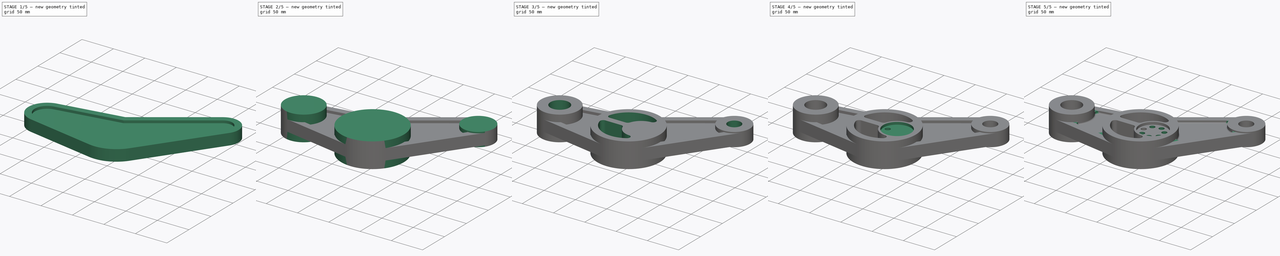
[diagram: build sequence overview — one tinted view per stage of 5, left to right]
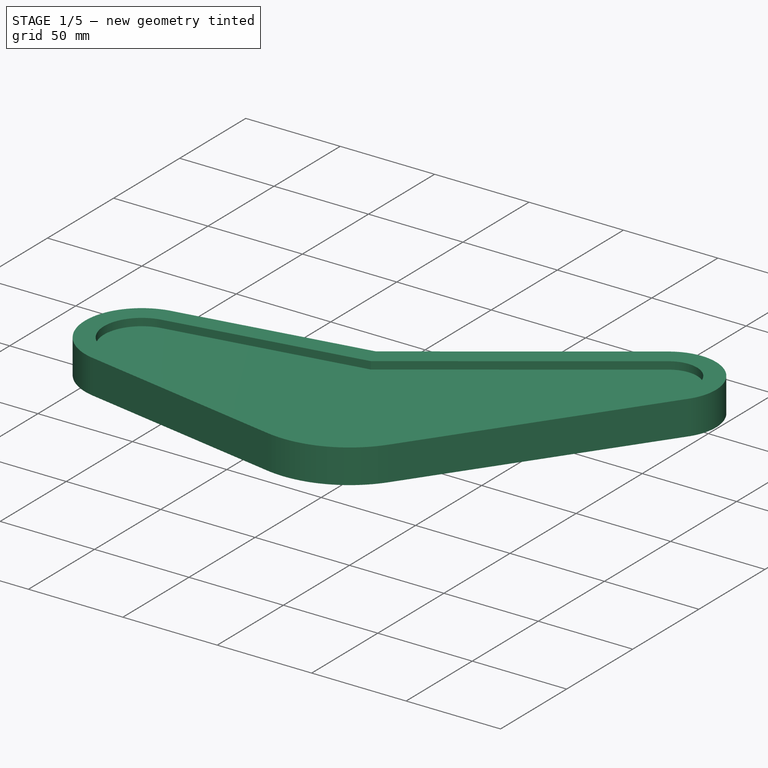
[diagram: stage 1 of 5 — iso view after this stage's code; geometry added in this stage tinted green]
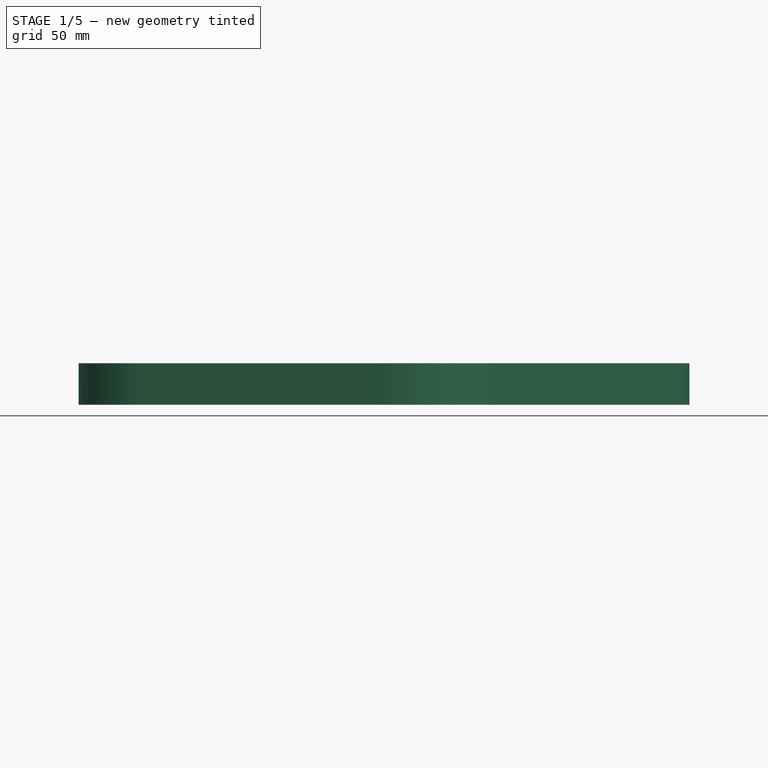
[diagram: stage 1 of 5 — front view after this stage's code; geometry added in this stage tinted green]
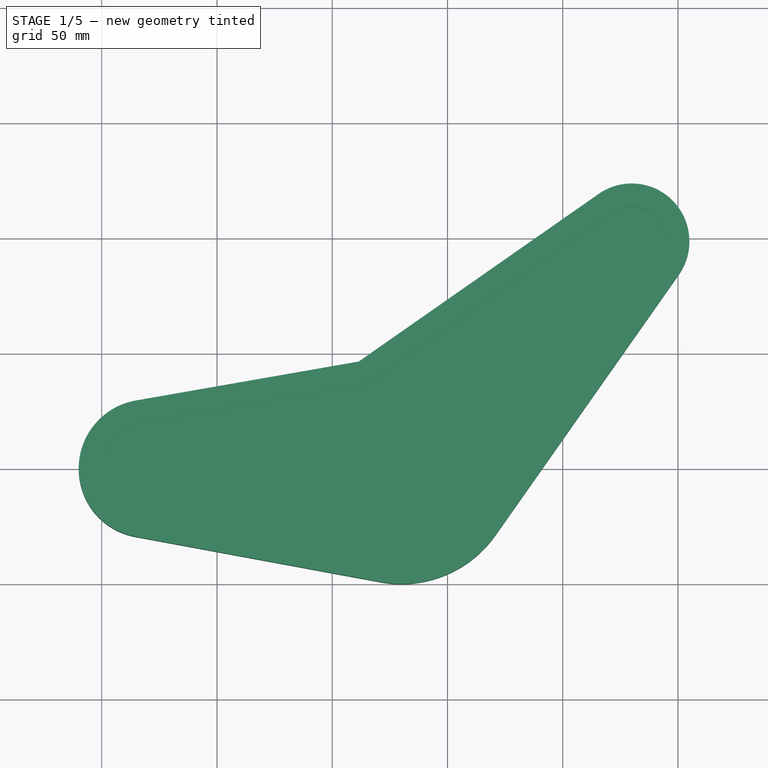
[diagram: stage 1 of 5 — top view after this stage's code; geometry added in this stage tinted green]
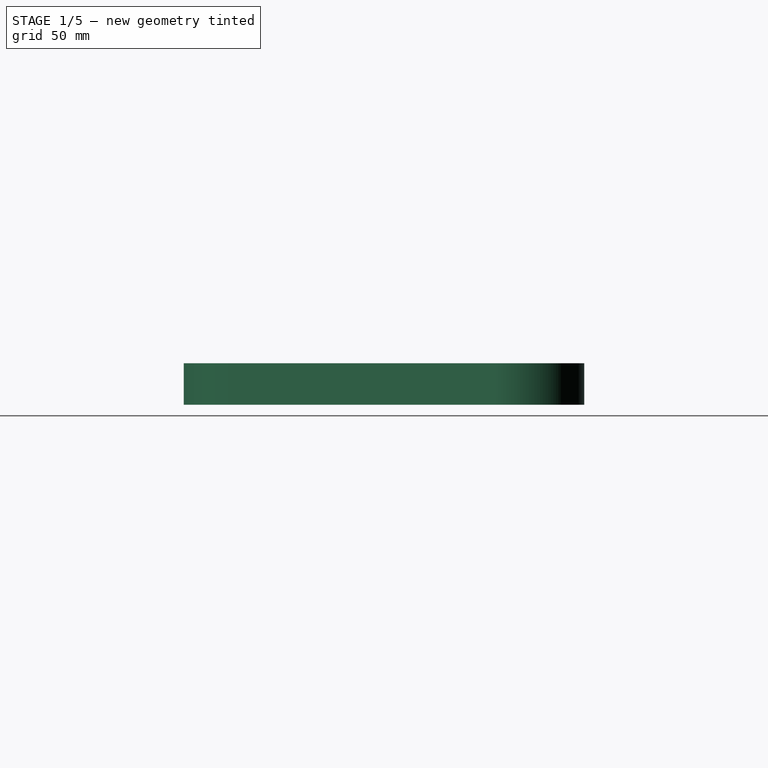
[diagram: stage 1 of 5 — right view after this stage's code; geometry added in this stage tinted green]
FCSTD DOCUMENT  (FreeCAD 0.17R9467 (Git))
Label: Moderate
License: All rights reserved
LicenseURL: http://en.wikipedia.org/wiki/All_rights_reserved
objects: Sketcher::SketchObject×9, PartDesign::Pocket×5, PartDesign::Pad×4, PartDesign::Mirrored×3, PartDesign::Plane×2, PartDesign::Fillet×2, PartDesign::PolarPattern×1, PartDesign::Body×1
note: 36 computed .brp shape members not serialized (recipe doc carries the construction recipe); baked Part::Feature solids carry a one-line shape summary decoded from their .brp

FEATURE [Sketcher::SketchObject] Sketch
  MapMode = 5
  Support = -> [XY_Plane]
  sketch-geometry (11):
    g0: Circle [constr] CenterX=0 CenterY=0 CenterZ=0 NormalX=0 NormalY=0 NormalZ=1 Radius=20
    g1: LineSegment [constr] StartX=0 StartY=0 StartZ=0 EndX=79.9237 EndY=98.6975 EndZ=0
    g2: LineSegment [constr] StartX=0 StartY=0 StartZ=0 EndX=-130 EndY=0 EndZ=0
    g3: ArcOfCircle CenterX=79.9237 CenterY=98.6975 CenterZ=0 NormalX=0 NormalY=0 NormalZ=1 Radius=25 StartAngle=5.67057 EndAngle=8.46384
    g4: ArcOfCircle CenterX=-130 CenterY=0 CenterZ=0 NormalX=0 NormalY=0 NormalZ=1 Radius=30 StartAngle=1.74387 EndAngle=4.52955
    g5: LineSegment StartX=-135.455 StartY=-29.5 StartZ=0 EndX=-29.091 EndY=-49.1666 EndZ=0
    g6: LineSegment StartX=20.9073 StartY=-28.7505 StartZ=0 EndX=100.377 EndY=84.3223 EndZ=0
    g7: LineSegment StartX=65.6049 StartY=119.191 StartZ=0 EndX=-38.5007 EndY=46.4513 EndZ=0
    g8: LineSegment StartX=-135.166 StartY=29.5518 StartZ=0 EndX=-38.5007 EndY=46.4513 EndZ=0
    g9: ArcOfCircle CenterX=-20 CenterY=0 CenterZ=0 NormalX=0 NormalY=0 NormalZ=1 Radius=50 StartAngle=4.52955 EndAngle=5.67057
    g10: LineSegment [constr] StartX=-38.5007 StartY=46.4513 StartZ=0 EndX=-20 EndY=0 EndZ=0
  constraints (32):
    c: Coincident(g0,g-1)
    c: Coincident(g1,g-1)
    c: Coincident(g2,g-1)
    c: Horizontal(g2)
    c: Radius(g0) = 20
    c: Angle(g-1,g1) = 0.890118
    c: Coincident(g3,g1)
    c: Coincident(g4,g2)
    c: Coincident(g5,g4)
    c: Coincident(g8,g4)
    c: Coincident(g7,g8)
    c: Tangent(g5,g4)
    c: Tangent(g8,g4)
    c: Coincident(g3,g7)
    c: Tangent(g3,g7)
    c: Tangent(g6,g3)
    c: Coincident(g3,g6)
    c: Radius(g3) = 25
    c: Radius(g4) = 30
    c: PointOnObject(g9,g0)
    c: Coincident(g9,g6)
    c: Coincident(g9,g5)
    c: PointOnObject(g9,g-1)
    c: Tangent(g5,g9)
    c: Tangent(g9,g6)
    c: DistanceX(g2,g-1) = 130
    c: Distance(g1) = 127
    c: Distance(g7) = 127
    c: Radius(g9) = 50
    c: Coincident(g10,g7)
    c: Coincident(g10,g9)
    c: Distance(g10) = 50
FEATURE [PartDesign::Pad] Pad
  Length = 18
  Length2 = 100
  Midplane = true
  Profile = -> Sketch
  Type = 0
FEATURE [PartDesign::Plane] DatumPlane
  MapMode = 5
  Placement = pos=(0,0,9) rot=(0,0,1;0rad)
  Support = -> [XY_Plane]
  superPlacement = pos=(0,0,9) rot=(0,0,1;0rad)
FEATURE [Sketcher::SketchObject] Sketch001
  ExternalGeometry = -> [Pad]
  MapMode = 5
  Placement = pos=(0,0,9) rot=(0,0,1;0rad)
  Support = -> [DatumPlane]
  sketch-geometry (7):
    g0: ArcOfCircle CenterX=79.9237 CenterY=98.6975 CenterZ=0 NormalX=0 NormalY=0 NormalZ=1 Radius=15 StartAngle=5.67057 EndAngle=8.46384
    g1: ArcOfCircle CenterX=-20 CenterY=0 CenterZ=0 NormalX=0 NormalY=0 NormalZ=1 Radius=40 StartAngle=4.52956 EndAngle=5.67057
    g2: ArcOfCircle CenterX=-130 CenterY=0 CenterZ=0 NormalX=0 NormalY=0 NormalZ=1 Radius=20 StartAngle=1.74387 EndAngle=4.52955
    g3: LineSegment StartX=-133.444 StartY=19.7012 StartZ=0 EndX=-34.5924 EndY=36.9829 EndZ=0
    g4: LineSegment StartX=71.3324 StartY=110.993 StartZ=0 EndX=-34.5924 EndY=36.9829 EndZ=0
    g5: LineSegment StartX=-133.636 StartY=-19.6666 StartZ=0 EndX=-27.2727 EndY=-39.3333 EndZ=0
    g6: LineSegment StartX=12.7258 StartY=-23.0004 StartZ=0 EndX=92.1959 EndY=90.0724 EndZ=0
  constraints (21):
    c: Coincident(g0,g-4)
    c: Coincident(g1,g-3)
    c: Coincident(g2,g-5)
    c: Coincident(g3,g2)
    c: Coincident(g5,g2)
    c: Coincident(g5,g1)
    c: Coincident(g6,g1)
    c: Coincident(g0,g6)
    c: Coincident(g0,g4)
    c: Coincident(g3,g4)
    c: Radius(g2) = 20
    c: Radius(g0) = 15
    c: Radius(g1) = 40
    c: Tangent(g0,g4)
    c: Tangent(g3,g2)
    c: Tangent(g5,g2)
    c: Tangent(g6,g1)
    c: Tangent(g5,g1)
    c: Tangent(g0,g6)
    c: Parallel(g4,g-6)
    c: Parallel(g3,g-7)
FEATURE [PartDesign::Pocket] Pocket
  BaseFeature = -> Pad
  Length = 4
  Profile = -> Sketch001
  Type = 0
FEATURE [PartDesign::Mirrored] Mirrored
  BaseFeature = -> Pocket
  MirrorPlane = -> XY_Plane
  Originals = -> [Pocket]
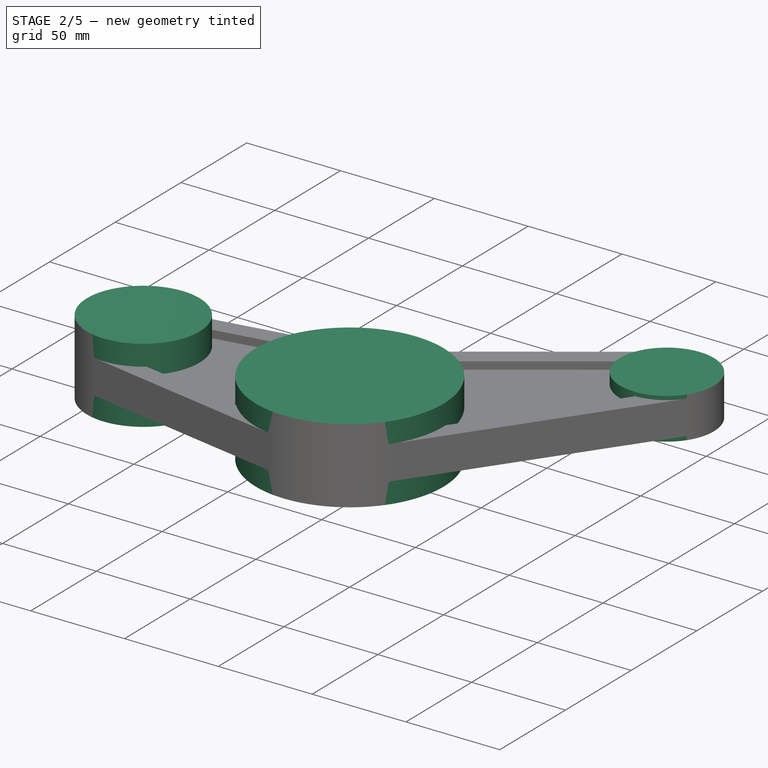
[diagram: stage 2 of 5 — iso view after this stage's code; geometry added in this stage tinted green]
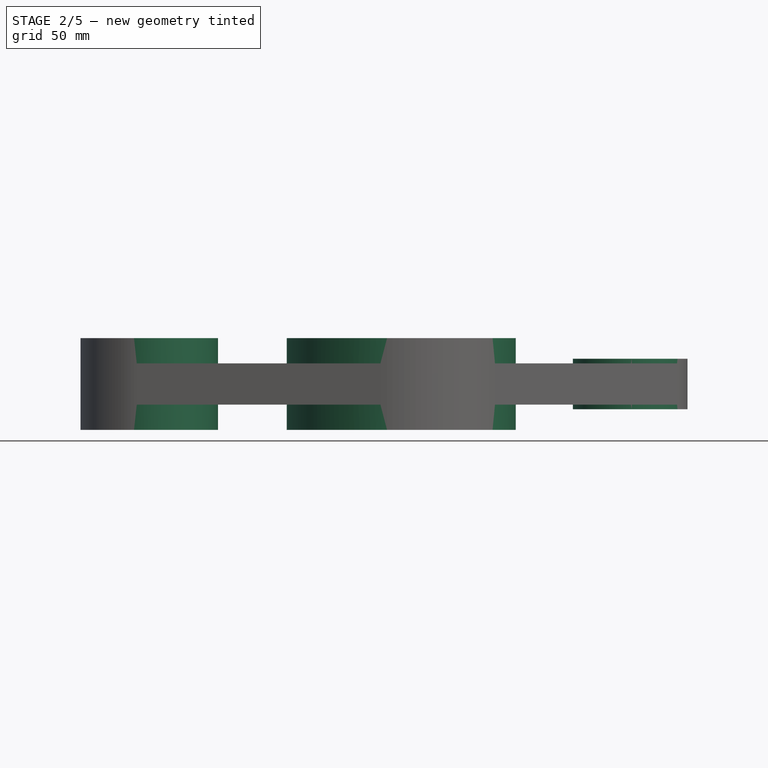
[diagram: stage 2 of 5 — front view after this stage's code; geometry added in this stage tinted green]
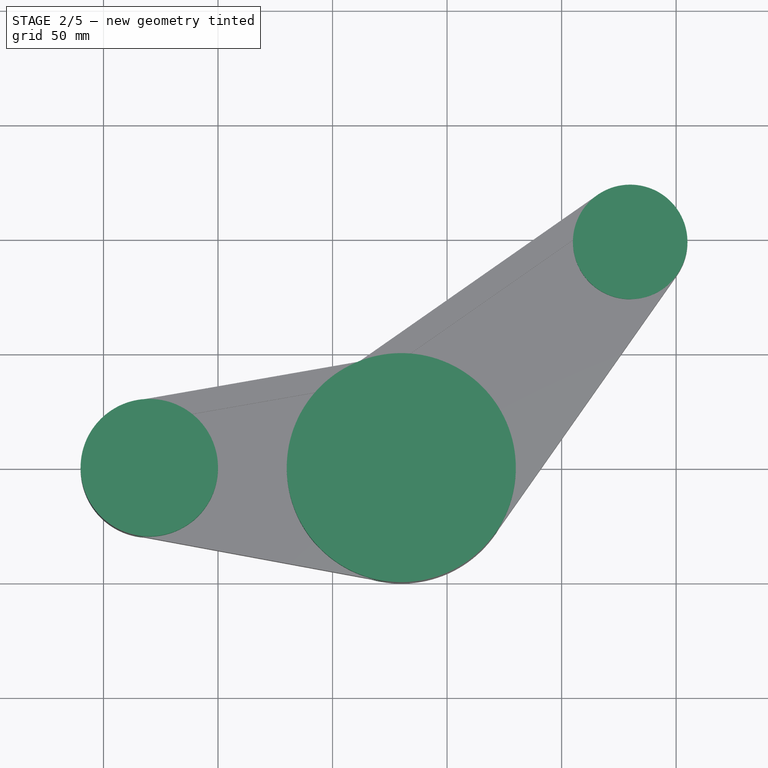
[diagram: stage 2 of 5 — top view after this stage's code; geometry added in this stage tinted green]
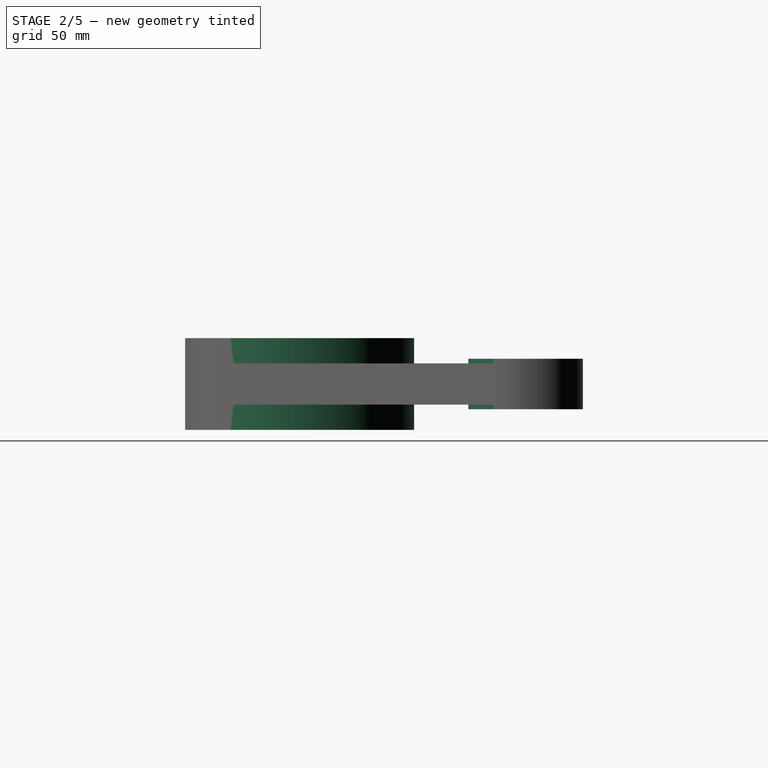
[diagram: stage 2 of 5 — right view after this stage's code; geometry added in this stage tinted green]
FEATURE [Sketcher::SketchObject] Sketch002
  MapMode = 5
  Support = -> [XY_Plane]
  sketch-geometry (1):
    g0: Circle CenterX=-20 CenterY=0 CenterZ=0 NormalX=0 NormalY=0 NormalZ=1 Radius=50
  constraints (3):
    c: PointOnObject(g0,g-1)
    c: Radius(g0) = 50
    c: DistanceX(g0,g-1) = 20
FEATURE [PartDesign::Pad] Pad001
  BaseFeature = -> Mirrored
  Length = 40
  Length2 = 100
  Midplane = true
  Profile = -> Sketch002
  Type = 0
FEATURE [Sketcher::SketchObject] Sketch003
  ExternalGeometry = -> [Pad001]
  MapMode = 5
  Support = -> [XY_Plane]
  sketch-geometry (1):
    g0: Circle CenterX=79.9237 CenterY=98.6975 CenterZ=0 NormalX=0 NormalY=0 NormalZ=1 Radius=25
  constraints (2):
    c: Coincident(g0,g-3)
    c: Radius(g0) = 25
FEATURE [PartDesign::Pad] Pad002
  BaseFeature = -> Pad001
  Length = 22
  Length2 = 100
  Midplane = true
  Profile = -> Sketch003
  Type = 0
FEATURE [Sketcher::SketchObject] Sketch004
  ExternalGeometry = -> [Pad002]
  MapMode = 5
  Support = -> [XY_Plane]
  sketch-geometry (1):
    g0: Circle CenterX=-130 CenterY=0 CenterZ=0 NormalX=0 NormalY=0 NormalZ=1 Radius=30
  constraints (2):
    c: Coincident(g0,g-3)
    c: Radius(g0) = 30
FEATURE [PartDesign::Pad] Pad003
  BaseFeature = -> Pad002
  Length = 40
  Length2 = 100
  Midplane = true
  Profile = -> Sketch004
  Type = 0
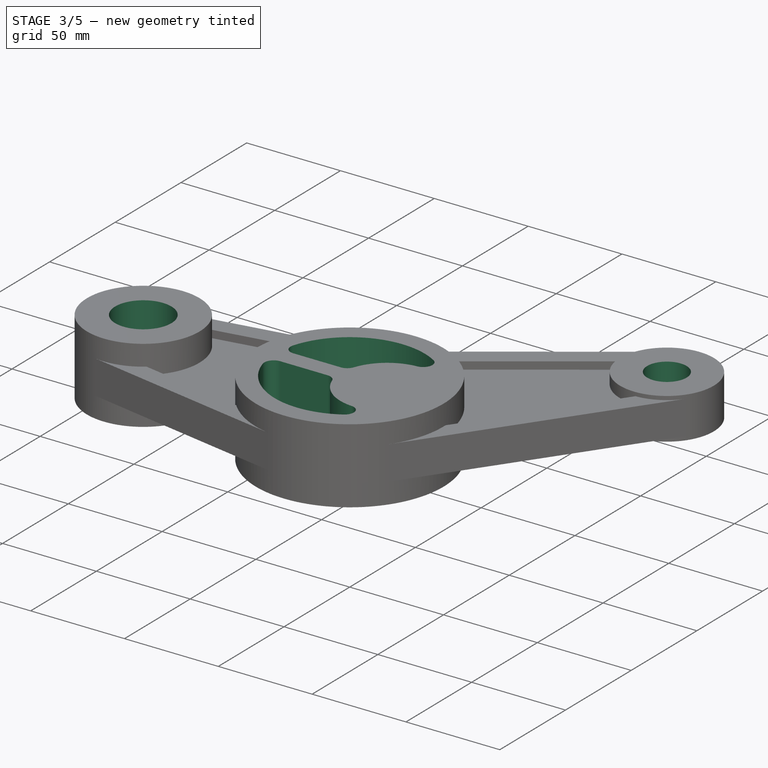
[diagram: stage 3 of 5 — iso view after this stage's code; geometry added in this stage tinted green]
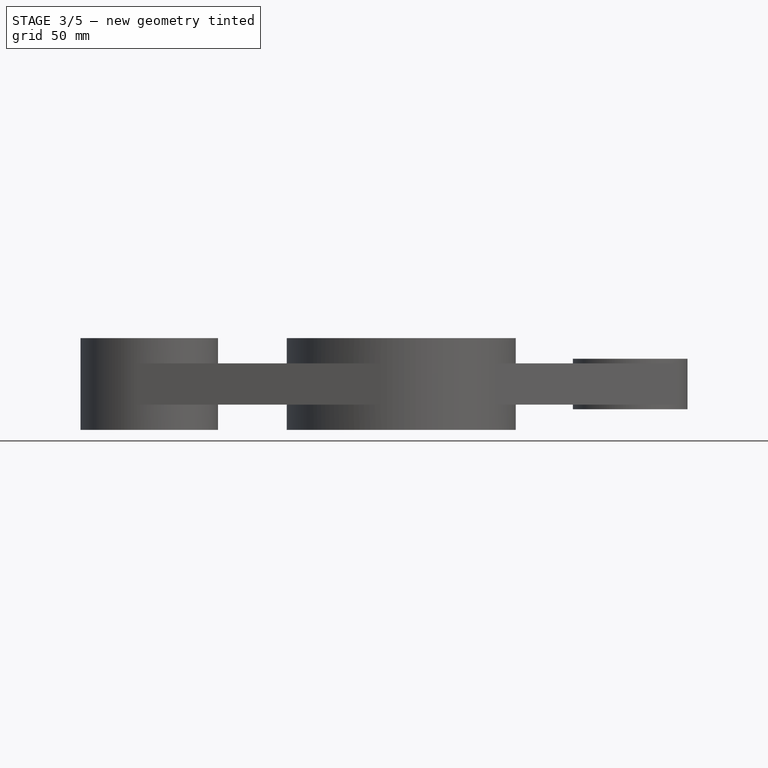
[diagram: stage 3 of 5 — front view after this stage's code; geometry added in this stage tinted green]
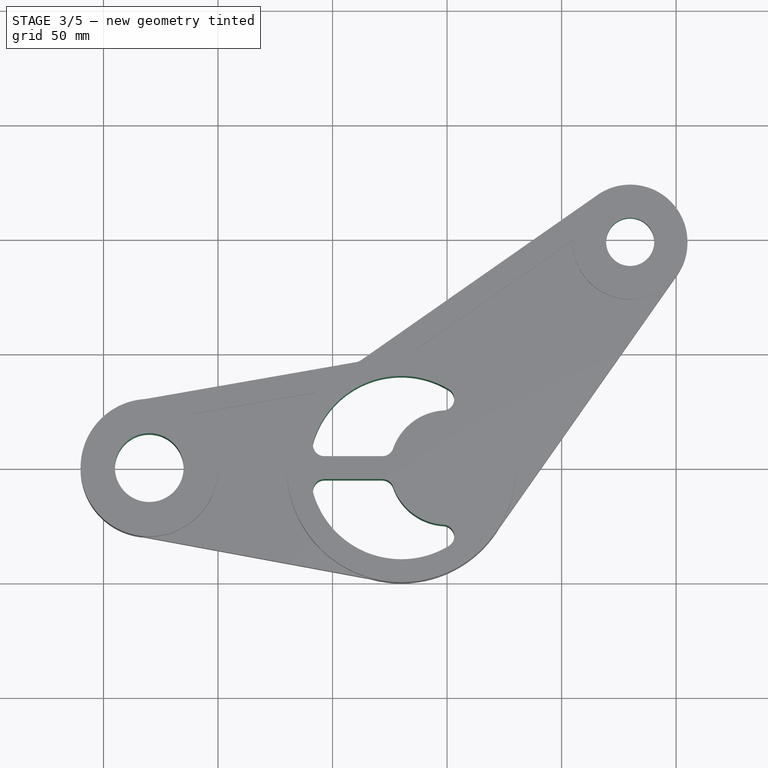
[diagram: stage 3 of 5 — top view after this stage's code; geometry added in this stage tinted green]
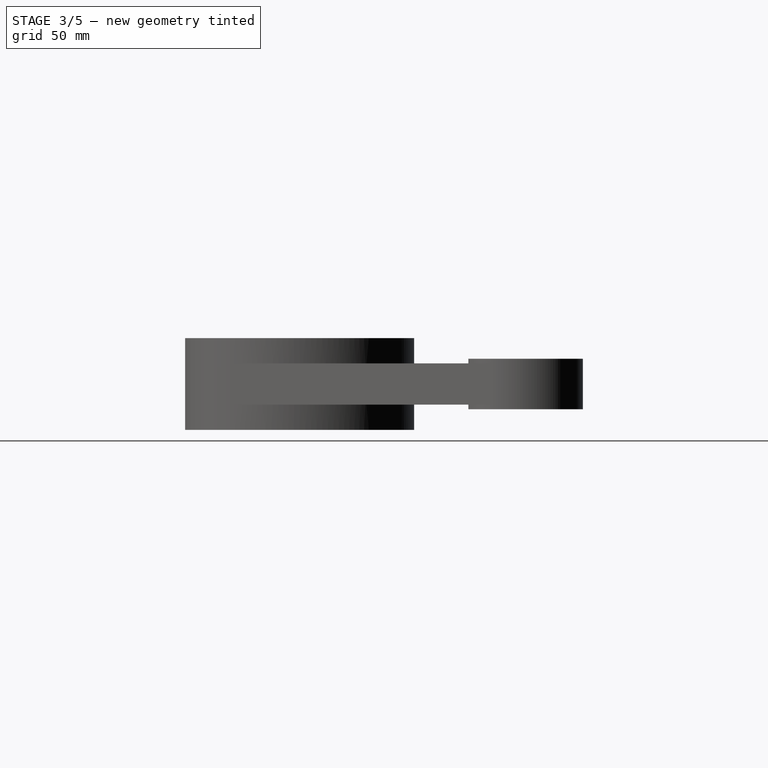
[diagram: stage 3 of 5 — right view after this stage's code; geometry added in this stage tinted green]
FEATURE [Sketcher::SketchObject] Sketch005
  ExternalGeometry = -> [Pad003]
  MapMode = 5
  Support = -> [XY_Plane]
  sketch-geometry (2):
    g0: Circle CenterX=-130 CenterY=0 CenterZ=0 NormalX=0 NormalY=0 NormalZ=1 Radius=15
    g1: Circle CenterX=79.9237 CenterY=98.6975 CenterZ=0 NormalX=0 NormalY=0 NormalZ=1 Radius=10.5
  constraints (4):
    c: Coincident(g0,g-3)
    c: Coincident(g1,g-4)
    c: Radius(g1) = 10.5
    c: Radius(g0) = 15
FEATURE [PartDesign::Pocket] Pocket001
  BaseFeature = -> Pad003
  Length = 5
  Midplane = true
  Profile = -> Sketch005
  Type = 1
FEATURE [Sketcher::SketchObject] Sketch006
  MapMode = 5
  Support = -> [XY_Plane]
  sketch-geometry (8):
    g0: Circle [constr] CenterX=-20 CenterY=0 CenterZ=0 NormalX=0 NormalY=0 NormalZ=1 Radius=50
    g1: Circle [constr] CenterX=0 CenterY=0 CenterZ=0 NormalX=0 NormalY=0 NormalZ=1 Radius=22
    g2: ArcOfCircle CenterX=0 CenterY=0 CenterZ=0 NormalX=0 NormalY=0 NormalZ=1 Radius=25 StartAngle=1.63334 EndAngle=2.80176
    g3: ArcOfCircle CenterX=-20 CenterY=0 CenterZ=0 NormalX=0 NormalY=0 NormalZ=1 Radius=40 StartAngle=1.02645 EndAngle=2.85184
    g4: ArcOfCircle CenterX=-53.541 CenterY=10 CenterZ=0 NormalX=0 NormalY=0 NormalZ=1 Radius=5 StartAngle=2.85184 EndAngle=4.71239
    g5: ArcOfCircle CenterX=-28.2843 CenterY=10 CenterZ=0 NormalX=0 NormalY=0 NormalZ=1 Radius=5 StartAngle=4.71239 EndAngle=5.94335
    g6: ArcOfCircle CenterX=-1.875 CenterY=29.9413 CenterZ=0 NormalX=0 NormalY=0 NormalZ=1 Radius=5 StartAngle=4.77493 EndAngle=7.30963
    g7: LineSegment StartX=-53.541 StartY=5 StartZ=0 EndX=-28.2843 EndY=5 EndZ=0
  constraints (26):
    c: PointOnObject(g0,g-1)
    c: Coincident(g1,g-1)
    c: DistanceX(g0,g-1) = 20
    c: Radius(g0) = 50
    c: Radius(g1) = 22
    c: Coincident(g2,g-1)
    c: Coincident(g3,g0)
    c: Coincident(g4,g3)
    c: Coincident(g5,g2)
    c: Coincident(g6,g3)
    c: Tangent(g6,g3)
    c: Tangent(g4,g3)
    c: Tangent(g5,g2)
    c: Tangent(g6,g2)
    c: Coincident(g2,g6)
    c: Coincident(g7,g4)
    c: Coincident(g7,g5)
    c: Horizontal(g7)
    c: Tangent(g5,g7)
    c: Tangent(g4,g7)
    c: Radius(g3) = 40
    c: Radius(g2) = 25
    c: DistanceY(g4) = 5
    c: Equal(g5,g4)
    c: Radius(g4) = 5
    c: Equal(g5,g6)
FEATURE [PartDesign::Pocket] Pocket002
  BaseFeature = -> Pocket001
  Length = 5
  Midplane = true
  Profile = -> Sketch006
  Type = 1
FEATURE [PartDesign::Mirrored] Mirrored001
  BaseFeature = -> Pocket002
  MirrorPlane = -> Sketch006 [H_Axis]
  Originals = -> [Pocket002]
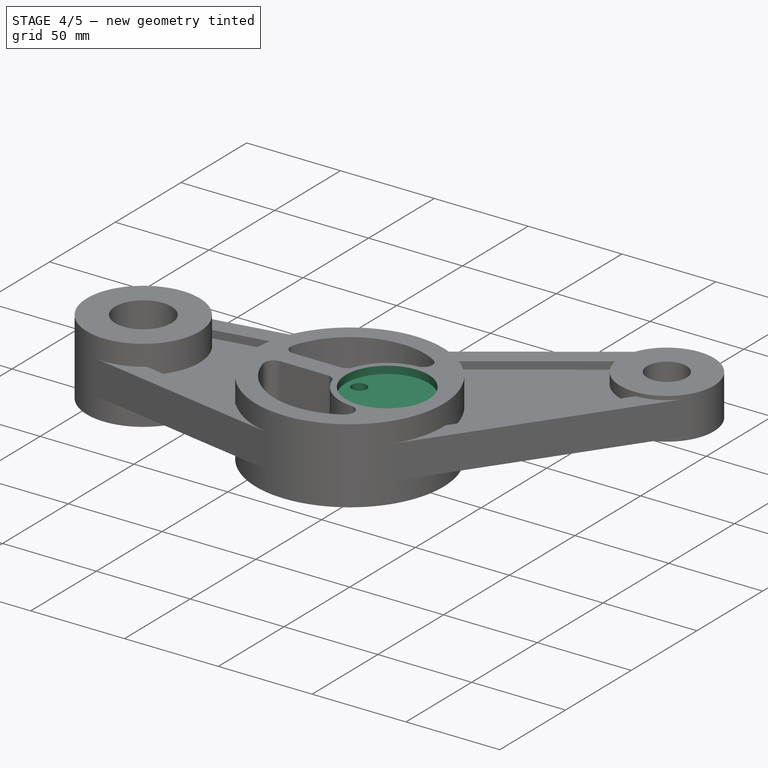
[diagram: stage 4 of 5 — iso view after this stage's code; geometry added in this stage tinted green]
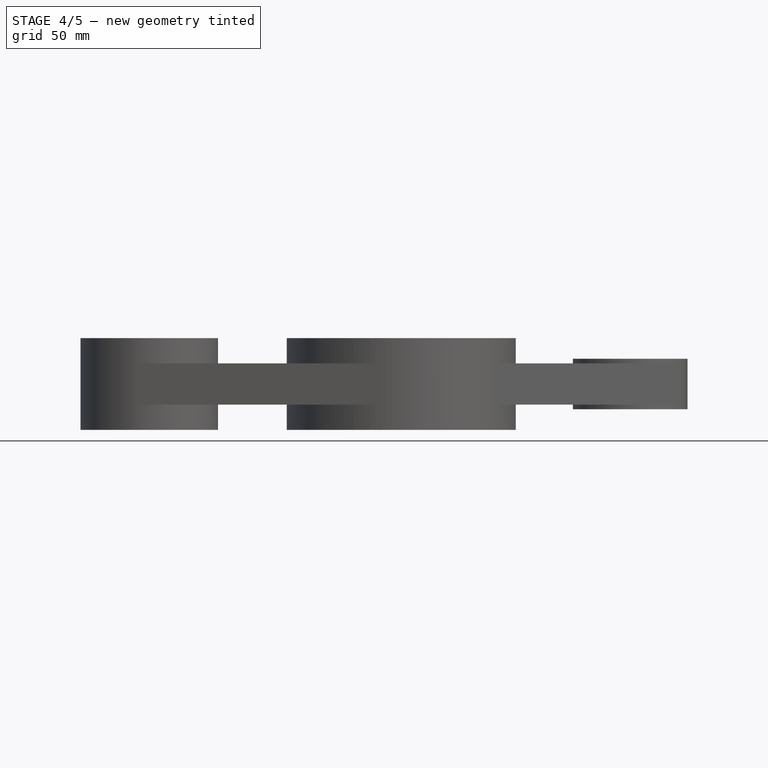
[diagram: stage 4 of 5 — front view after this stage's code; geometry added in this stage tinted green]
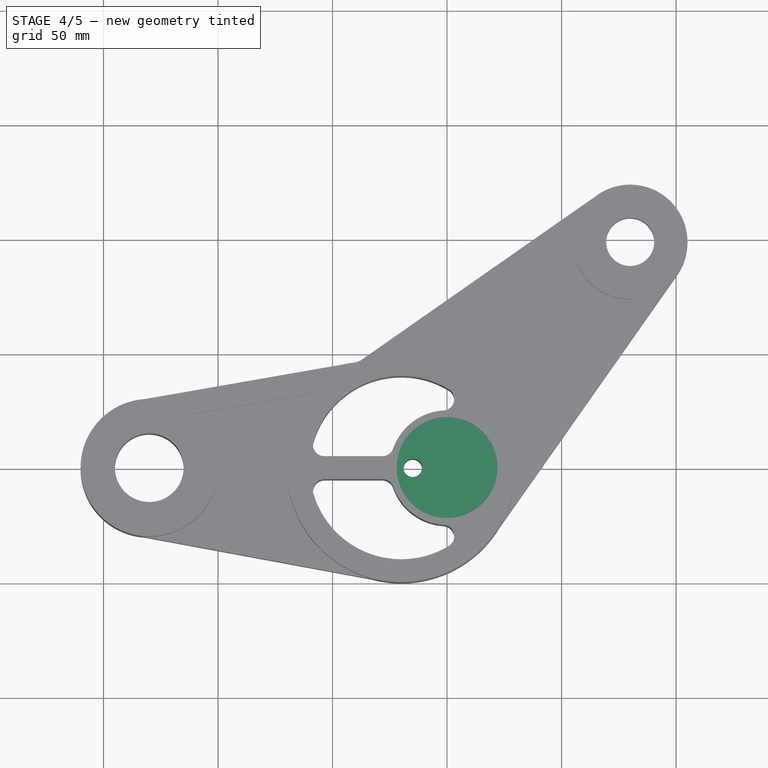
[diagram: stage 4 of 5 — top view after this stage's code; geometry added in this stage tinted green]
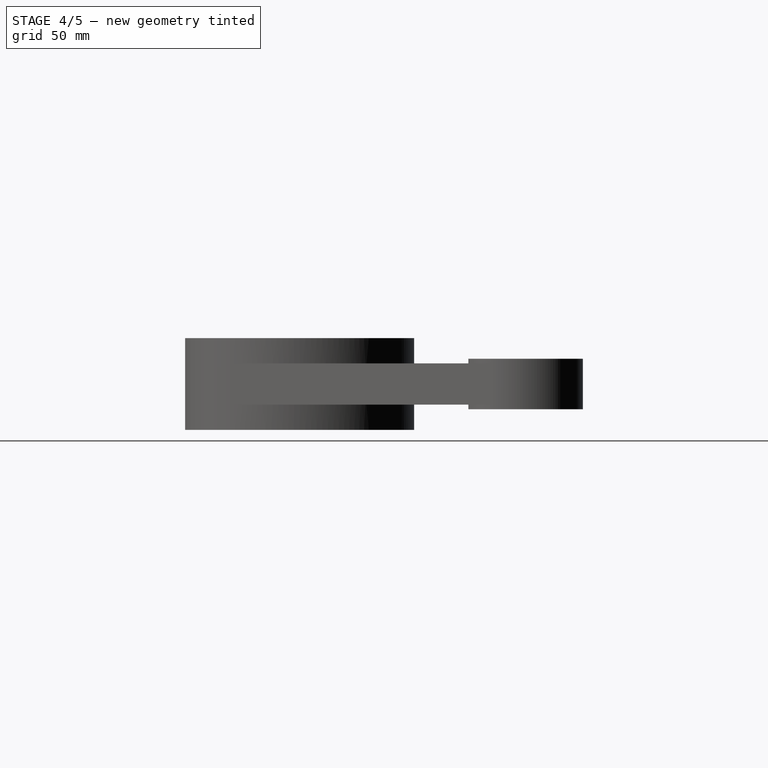
[diagram: stage 4 of 5 — right view after this stage's code; geometry added in this stage tinted green]
FEATURE [PartDesign::Plane] DatumPlane001
  MapMode = 5
  Placement = pos=(0,0,20) rot=(0,0,1;0rad)
  Support = -> [XY_Plane]
  superPlacement = pos=(0,0,20) rot=(0,0,1;0rad)
FEATURE [Sketcher::SketchObject] Sketch007
  MapMode = 5
  Placement = pos=(0,0,20) rot=(0,0,1;0rad)
  Support = -> [DatumPlane001]
  sketch-geometry (1):
    g0: Circle CenterX=0 CenterY=0 CenterZ=0 NormalX=0 NormalY=0 NormalZ=1 Radius=22
  constraints (2):
    c: Coincident(g0,g-1)
    c: Radius(g0) = 22
FEATURE [PartDesign::Pocket] Pocket003
  BaseFeature = -> Mirrored001
  Length = 4
  Profile = -> Sketch007
  Type = 0
FEATURE [PartDesign::Mirrored] Mirrored002
  BaseFeature = -> Pocket003
  MirrorPlane = -> XY_Plane
  Originals = -> [Pocket003]
FEATURE [Sketcher::SketchObject] Sketch008
  MapMode = 5
  Support = -> [XY_Plane]
  sketch-geometry (1):
    g0: Circle CenterX=-15 CenterY=0 CenterZ=0 NormalX=0 NormalY=0 NormalZ=1 Radius=4
  constraints (3):
    c: PointOnObject(g0,g-1)
    c: Radius(g0) = 4
    c: DistanceX(g0,g-1) = 15
FEATURE [PartDesign::Pocket] Pocket004
  BaseFeature = -> Mirrored002
  Length = 5
  Midplane = true
  Profile = -> Sketch008
  Type = 1
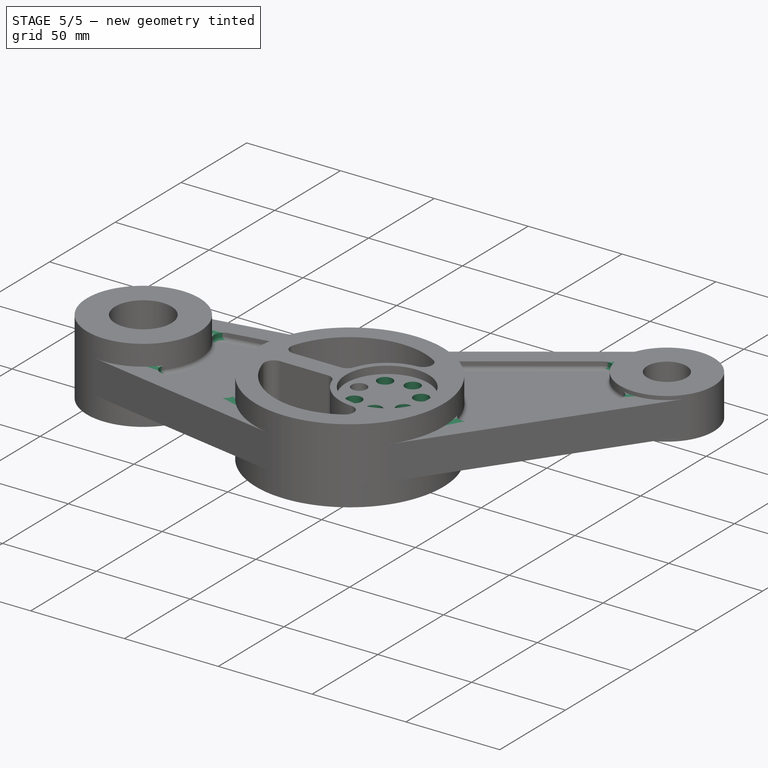
[diagram: stage 5 of 5 — iso view after this stage's code; geometry added in this stage tinted green]
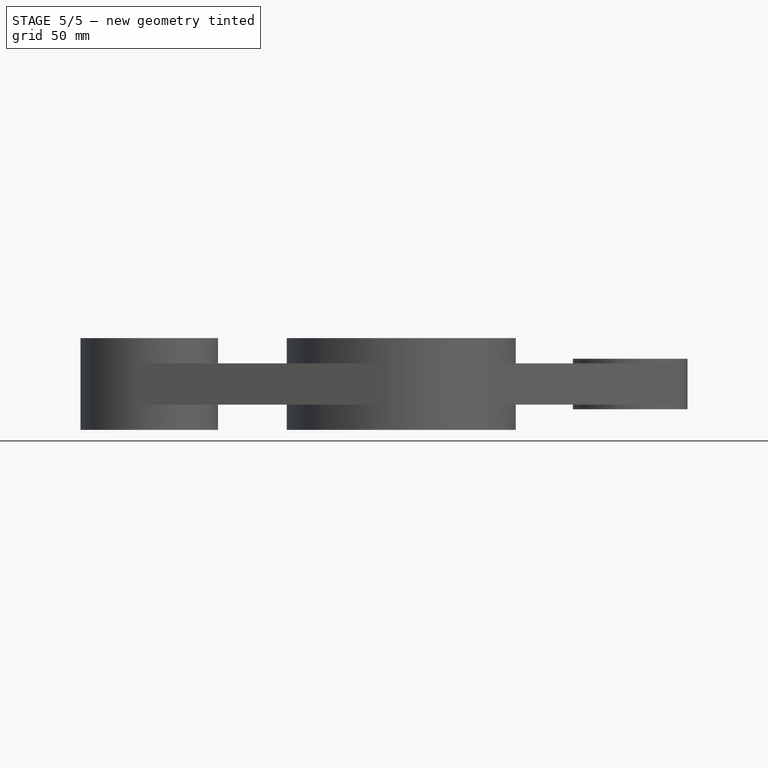
[diagram: stage 5 of 5 — front view after this stage's code; geometry added in this stage tinted green]
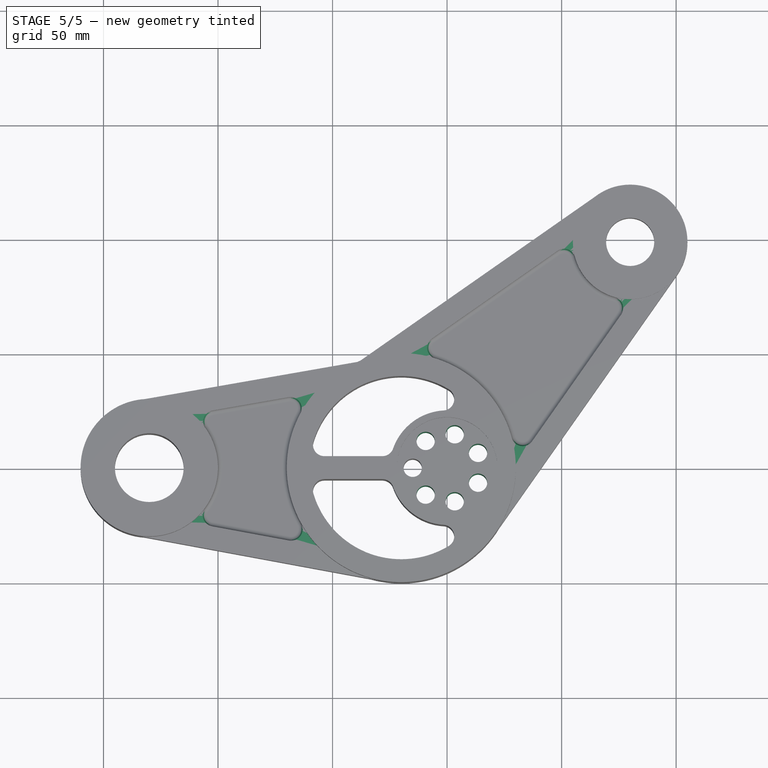
[diagram: stage 5 of 5 — top view after this stage's code; geometry added in this stage tinted green]
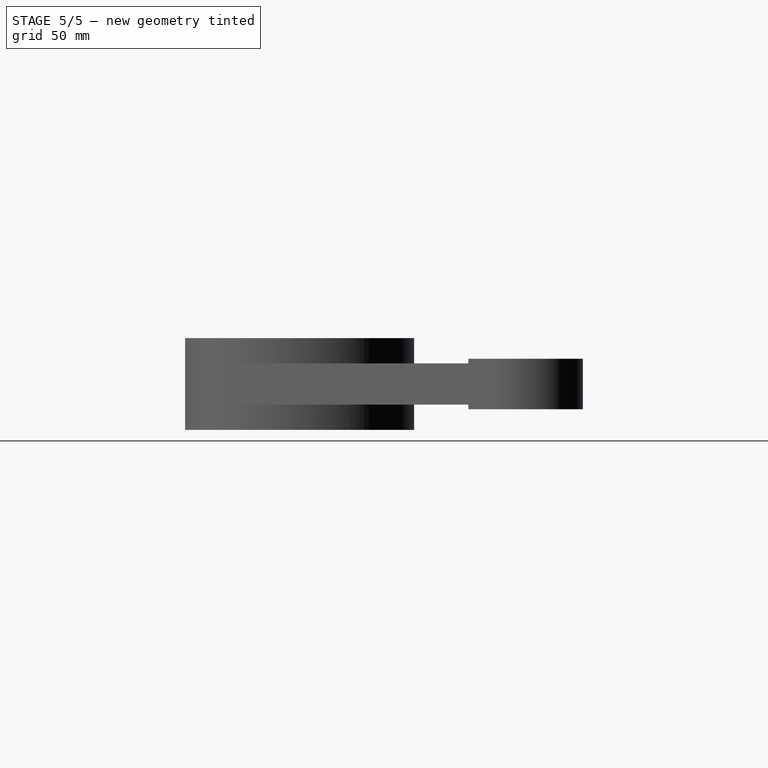
[diagram: stage 5 of 5 — right view after this stage's code; geometry added in this stage tinted green]
FEATURE [PartDesign::PolarPattern] PolarPattern
  Angle = 360
  Axis = -> Sketch008 [N_Axis]
  BaseFeature = -> Pocket004
  Occurrences = 7
  Originals = -> [Pocket004]
FEATURE [PartDesign::Fillet] Fillet
  Base = -> PolarPattern [Edge97,Edge92,Edge84,Edge79,Edge48,Edge56,Edge54,Edge50,Edge28,Edge35,Edge40,Edge24,Edge8,Edge12,Edge6,Edge14]
  BaseFeature = -> PolarPattern
  Radius = 5
FEATURE [PartDesign::Fillet] Fillet001
  Base = -> Fillet [Face37,Face2,Face13,Face30]
  BaseFeature = -> Fillet
  Radius = 2
FEATURE [PartDesign::Body] Body
  Model = -> [Sketch,Pad,DatumPlane,Sketch001,Pocket,Mirrored,Sketch002,Pad001,Sketch003,Pad002,Sketch004,Pad003,Sketch005,Pocket001,Sketch006,Pocket002,Mirrored001,DatumPlane001,Sketch007,Pocket003,Mirrored002,Sketch008,Pocket004,PolarPattern,Fillet,Fillet001]
  Origin = -> BodyOrigin
  Tip = -> Fillet001
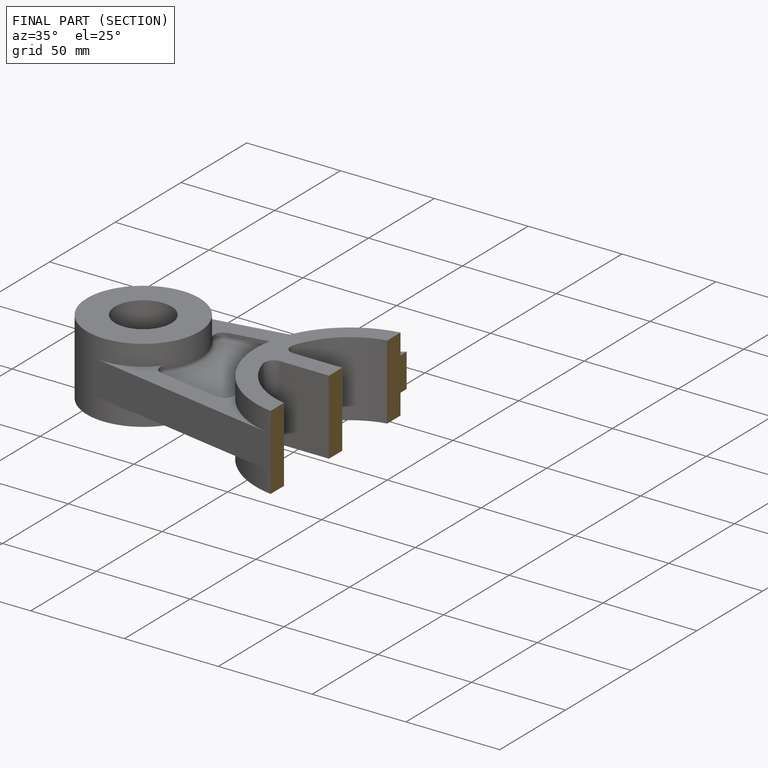
[diagram: finished part — half-section view (interior)]
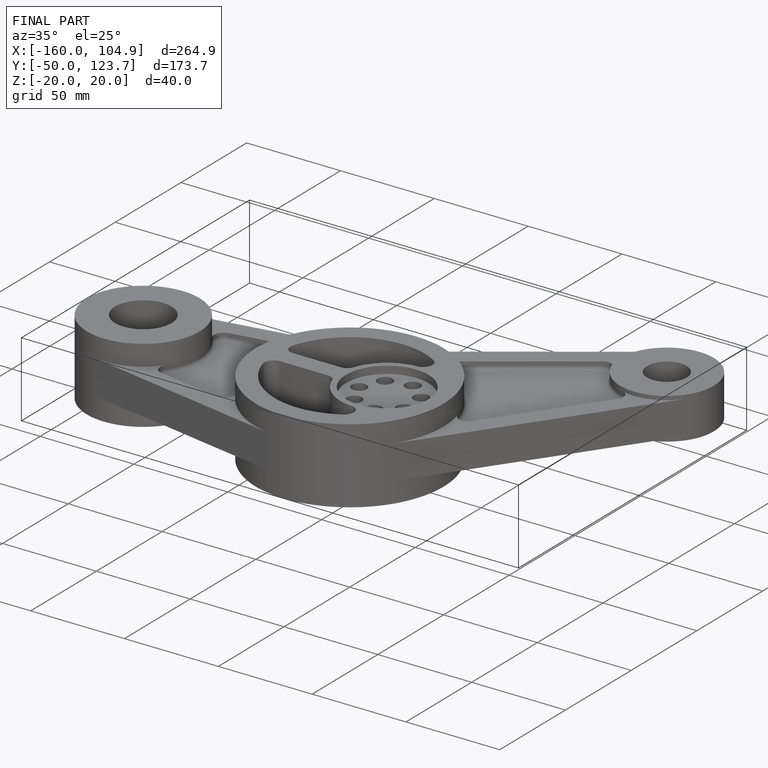
[diagram: finished part — iso view with bounding-box wireframe]
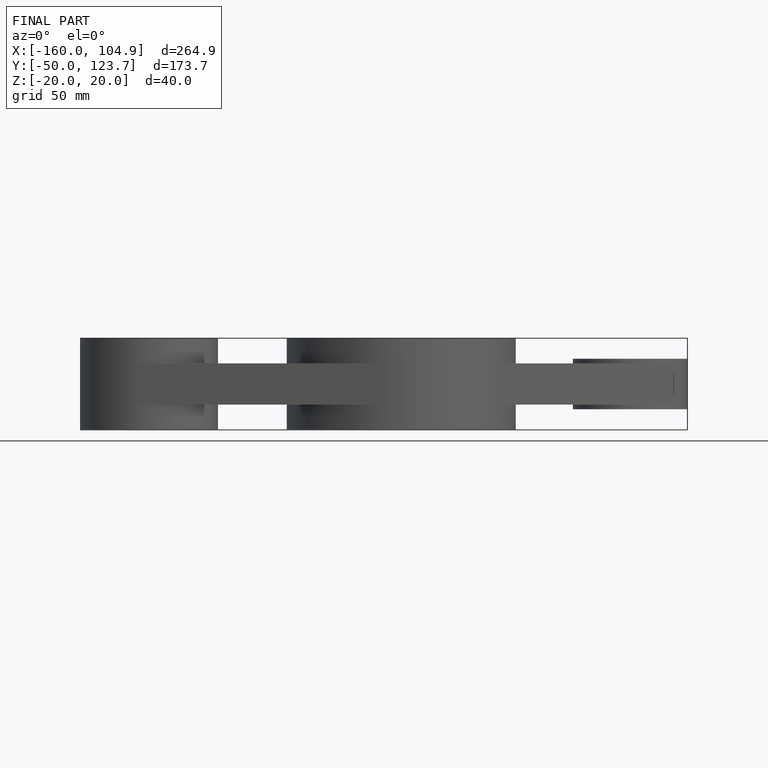
[diagram: finished part — front view with bounding-box wireframe]
